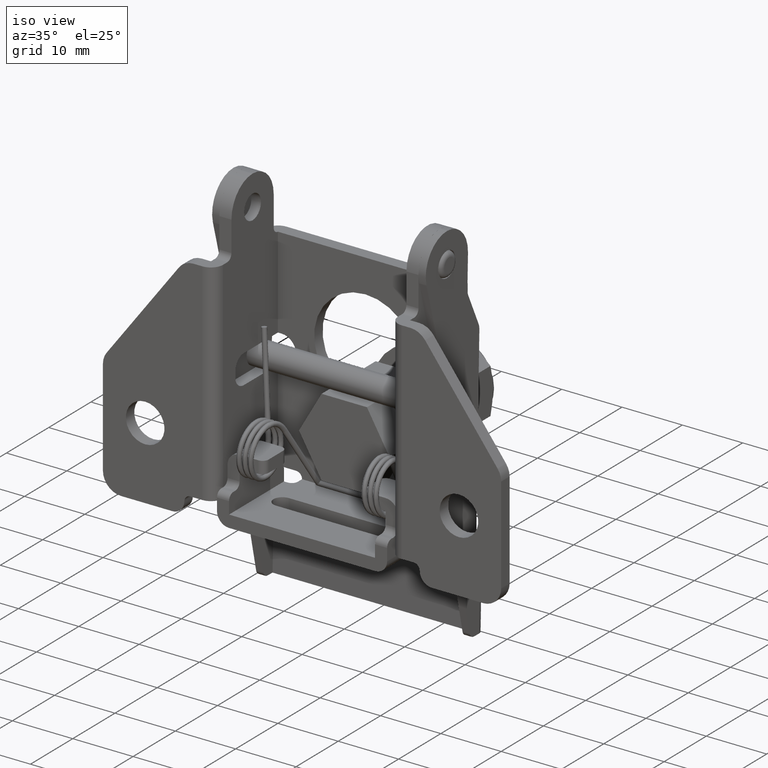
[diagram: clean part render]
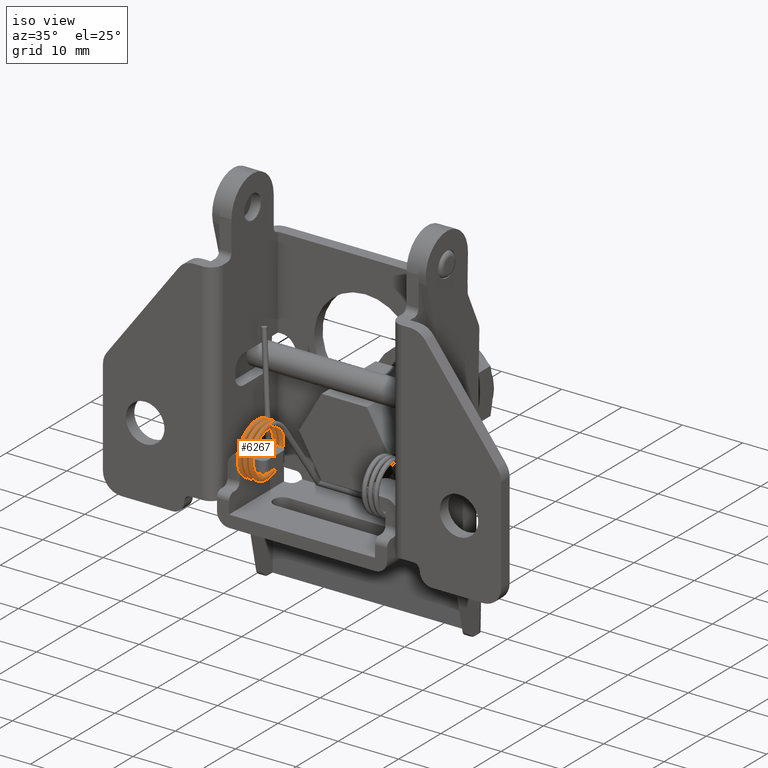
[diagram: same view with one face highlighted and labeled with its STEP entity id]
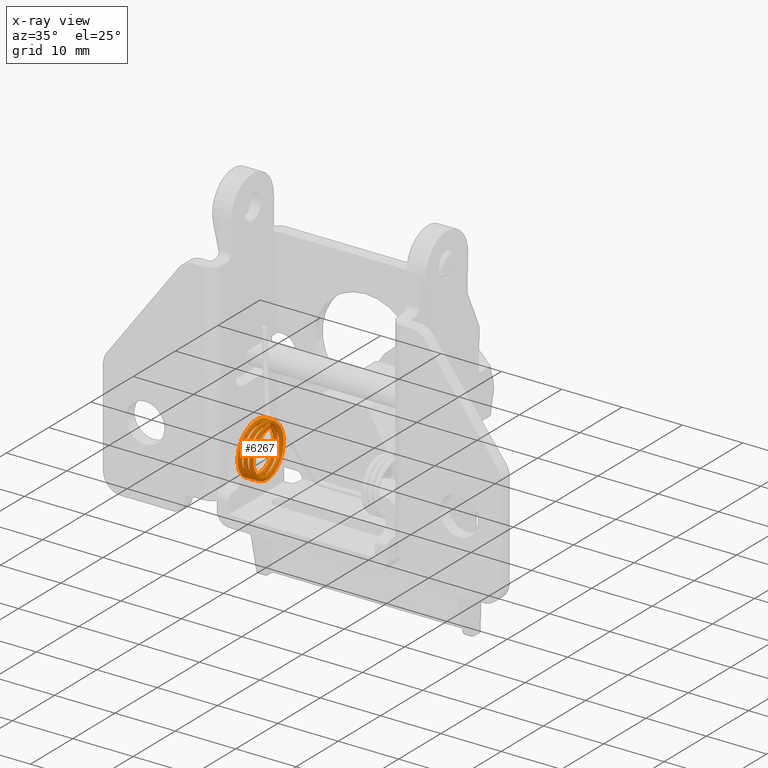
[diagram: x-ray of the same camera — body ghosted, the highlighted face saturated]
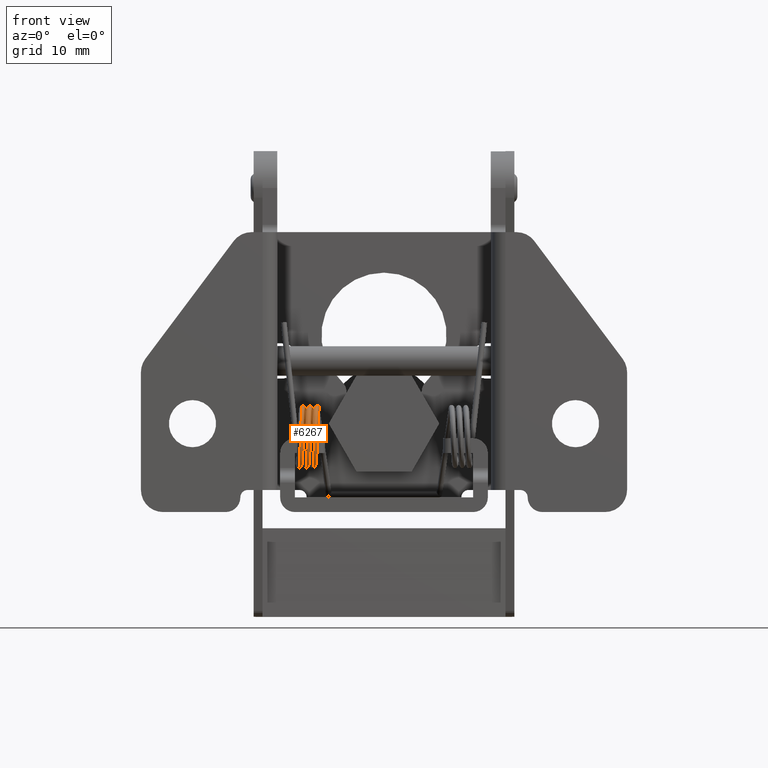
[diagram: same view with one face highlighted and labeled with its STEP entity id]
A machine part, iso view. The second image highlights one B-rep face of the part: STEP entity #6267.
The next image is the same camera in x-ray: the body ghosted, the highlighted face saturated — about 0% of this face is hidden behind the body in this view.
A second angle (front view) of the same face is appended — the face is thin or edge-on in the first view.
In plain terms, the highlighted face is a freeform B-spline surface patch.
Its self-contained STEP definition (entity closure, byte-faithful):
#9 = ORIENTED_EDGE ( 'NONE', *, *, #413, .F. ) ;
#28 = CARTESIAN_POINT ( 'NONE',  ( -10.13444173666892200, 5.200000000000001100, 2.527105745132014000 ) ) ;
#49 = ORIENTED_EDGE ( 'NONE', *, *, #6325, .F. ) ;
#63 = CARTESIAN_POINT ( 'NONE',  ( -10.91444173666892100, 9.500000000000005300, 0.008224063336321465700 ) ) ;
#96 = AXIS2_PLACEMENT_3D ( 'NONE', #4137, #9591, #4915 ) ;
#132 = CARTESIAN_POINT ( 'NONE',  ( -10.55444173666892000, 3.750252531694167100, -5.272894254867992500 ) ) ;
#169 = CARTESIAN_POINT ( 'NONE',  ( -11.33444173666892100, 1.699999999999998400, -1.772894254867989800 ) ) ;
#244 = CARTESIAN_POINT ( 'NONE',  ( -10.81444173666892400, 8.240559159102158300, 1.267664904234166600 ) ) ;
#286 = CARTESIAN_POINT ( 'NONE',  ( -11.59444173666892500, 9.500000000000005300, -3.554012573072304000 ) ) ;
#293 = CARTESIAN_POINT ( 'NONE',  ( -9.834441736668921400, 9.500000000000005300, -3.554012573072303100 ) ) ;
#330 = CARTESIAN_POINT ( 'NONE',  ( -12.37444173666892400, 5.199999999999999300, -6.072894254867994100 ) ) ;
#332 = CARTESIAN_POINT ( 'NONE',  ( -10.61444173666892100, 5.200000000000000200, -6.072894254867994100 ) ) ;
#356 = CARTESIAN_POINT ( 'NONE',  ( -9.894441736668920100, 9.500000000000005300, -1.772894254867990900 ) ) ;
#360 = CARTESIAN_POINT ( 'NONE',  ( -11.39444173666892000, 0.8999999999999965800, -3.554012573072300900 ) ) ;
#389 = CARTESIAN_POINT ( 'NONE',  ( -10.67444173666892100, 6.981118318204309500, -6.072894254867994900 ) ) ;
#394 = CARTESIAN_POINT ( 'NONE',  ( -8.914441736668919700, 6.981118318204311300, -6.072894254867995800 ) ) ;
#413 = EDGE_CURVE ( 'NONE', #5222, #7185, #1939, .T. ) ;
#426 = CARTESIAN_POINT ( 'NONE',  ( -11.45444173666891900, 2.159440840897842900, -4.813453413970147000 ) ) ;
#433 = CARTESIAN_POINT ( 'NONE',  ( -9.694441736668917300, 2.159440840897842500, -4.813453413970146100 ) ) ;
#464 = CARTESIAN_POINT ( 'NONE',  ( -10.01444173666892100, 7.674873734152919600, 0.7019794792849269900 ) ) ;
#467 = CARTESIAN_POINT ( 'NONE',  ( -10.47444173666892000, 0.8999999999999962500, 0.008224063336320815200 ) ) ;
#494 = CARTESIAN_POINT ( 'NONE',  ( -8.794441736668918700, 3.750252531694167100, -5.272894254867993300 ) ) ;
#534 = CARTESIAN_POINT ( 'NONE',  ( -9.574441736668918100, 1.699999999999998400, -1.772894254867990000 ) ) ;
#569 = CARTESIAN_POINT ( 'NONE',  ( -10.35444173666891900, 3.750252531694167500, 1.727105745132012400 ) ) ;
#598 = CARTESIAN_POINT ( 'NONE',  ( -9.474441736668920200, 1.699999999999998200, -3.222641723173823400 ) ) ;
#617 = CARTESIAN_POINT ( 'NONE',  ( -9.294441736668920500, 2.159440840897843400, 1.267664904234167400 ) ) ;
#630 = CARTESIAN_POINT ( 'NONE',  ( -10.25444173666892000, 2.725126265847083000, 0.7019794792849278800 ) ) ;
#653 = CARTESIAN_POINT ( 'NONE',  ( -9.474441736668920200, 0.8999999999999963600, -3.554012573072300500 ) ) ;
#668 = CARTESIAN_POINT ( 'NONE',  ( -11.03444173666892100, 6.649747468305837300, 1.727105745132011100 ) ) ;
#700 = CARTESIAN_POINT ( 'NONE',  ( -10.15444173666892300, 1.699999999999998400, -0.3231467865621562300 ) ) ;
#720 = CARTESIAN_POINT ( 'NONE',  ( -9.174441736668921300, 5.200000000000001100, 2.127105745132013200 ) ) ;
#728 = CARTESIAN_POINT ( 'NONE',  ( -10.93444173666892500, 5.200000000000000200, 1.727105745132012000 ) ) ;
#768 = CARTESIAN_POINT ( 'NONE',  ( -11.71444173666892600, 8.700000000000002800, -0.3231467865621555100 ) ) ;
#832 = CARTESIAN_POINT ( 'NONE',  ( -10.25444173666892000, 2.159440840897843400, 1.267664904234167400 ) ) ;
#856 = CARTESIAN_POINT ( 'NONE',  ( -11.03444173666892100, 6.981118318204313900, 2.527105745132013600 ) ) ;
#934 = CARTESIAN_POINT ( 'NONE',  ( -10.67444173666892100, 6.649747468305832000, -5.272894254867993300 ) ) ;
#964 = CARTESIAN_POINT ( 'NONE',  ( -11.45444173666891900, 2.725126265847082500, -4.247767989020908400 ) ) ;
#999 = CARTESIAN_POINT ( 'NONE',  ( -10.15444173666892300, 0.8999999999999962500, 0.008224063336320815200 ) ) ;
#1031 = CARTESIAN_POINT ( 'NONE',  ( -11.53263035136186000, 5.200000000000000200, -6.070703013015304400 ) ) ;
#1039 = CARTESIAN_POINT ( 'NONE',  ( -10.93444173666892500, 5.200000000000000200, 2.527105745132014500 ) ) ;
#1070 = CARTESIAN_POINT ( 'NONE',  ( -11.71444173666892600, 9.500000000000005300, 0.008224063336321465700 ) ) ;
#1073 = CARTESIAN_POINT ( 'NONE',  ( -9.954441736668918800, 9.500000000000005300, 0.008224063336321465700 ) ) ;
#1101 = CARTESIAN_POINT ( 'NONE',  ( -9.234441736668920000, 3.418881681795690000, 2.527105745132014500 ) ) ;
#1107 = CARTESIAN_POINT ( 'NONE',  ( -10.73444173666892200, 8.240559159102158300, -4.813453413970148800 ) ) ;
#1140 = CARTESIAN_POINT ( 'NONE',  ( -10.01444173666892100, 8.240559159102158300, 1.267664904234166600 ) ) ;
#1145 = CARTESIAN_POINT ( 'NONE',  ( -11.51444173666891900, 3.418881681795690000, -6.072894254867994900 ) ) ;
#1150 = CIRCLE ( 'NONE', #1722, 0.4000000000000010200 ) ;
#1180 = CARTESIAN_POINT ( 'NONE',  ( -10.79444173666892000, 9.500000000000005300, -3.554012573072303100 ) ) ;
#1184 = CARTESIAN_POINT ( 'NONE',  ( -9.034441736668917100, 9.500000000000005300, -3.554012573072304000 ) ) ;
#1210 = CARTESIAN_POINT ( 'NONE',  ( -11.57444173666892000, 5.200000000000000200, -6.072894254867994100 ) ) ;
#1211 = CARTESIAN_POINT ( 'NONE',  ( -9.354441736668921000, 1.699999999999998400, -0.3231467865621561700 ) ) ;
#1215 = CARTESIAN_POINT ( 'NONE',  ( -9.814441736668920100, 5.199999999999999300, -6.072894254867994100 ) ) ;
#1236 = CARTESIAN_POINT ( 'NONE',  ( -10.13444173666892200, 5.200000000000001100, 1.727105745132012200 ) ) ;
#1240 = CARTESIAN_POINT ( 'NONE',  ( -10.59444173666892300, 0.8999999999999962500, -3.554012573072300900 ) ) ;
#1284 = CARTESIAN_POINT ( 'NONE',  ( -8.914441736668919700, 6.649747468305833700, -5.272894254867993300 ) ) ;
#1319 = CARTESIAN_POINT ( 'NONE',  ( -9.694441736668917300, 2.725126265847082500, -4.247767989020907500 ) ) ;
#1349 = CARTESIAN_POINT ( 'NONE',  ( -10.47444173666892000, 1.699999999999998400, -0.3231467865621562300 ) ) ;
#1385 = CARTESIAN_POINT ( 'NONE',  ( -9.594441736668921200, 3.750252531694166600, -5.272894254867992500 ) ) ;
#1415 = CARTESIAN_POINT ( 'NONE',  ( -10.37444173666892100, 1.699999999999998400, -1.772894254867989800 ) ) ;
#1435 = CARTESIAN_POINT ( 'NONE',  ( -9.594441736668921200, 3.418881681795689500, -6.072894254867994900 ) ) ;
#1446 = CARTESIAN_POINT ( 'NONE',  ( -11.15444173666892300, 3.750252531694166600, 1.727105745132012600 ) ) ;
#1471 = CARTESIAN_POINT ( 'NONE',  ( -10.27444173666892600, 1.699999999999998400, -3.222641723173823800 ) ) ;
#1500 = DIRECTION ( 'NONE',  ( 0.0000000000000000000, 0.0000000000000000000, 1.000000000000000000 ) ) ;
#1507 = CARTESIAN_POINT ( 'NONE',  ( -11.05444173666892200, 2.725126265847083000, 0.7019794792849278800 ) ) ;
#1543 = CARTESIAN_POINT ( 'NONE',  ( -11.83444173666892700, 6.649747468305836400, 1.727105745132011800 ) ) ;
#1592 = CARTESIAN_POINT ( 'NONE',  ( -10.37444173666892100, 0.8999999999999962500, -1.772894254867989800 ) ) ;
#1628 = CARTESIAN_POINT ( 'NONE',  ( -11.15444173666892500, 3.418881681795689500, 2.527105745132014000 ) ) ;
#1631 = FACE_OUTER_BOUND ( 'NONE', #8585, .T. ) ;
#1700 = CARTESIAN_POINT ( 'NONE',  ( -10.79444173666892000, 8.700000000000002800, -3.222641723173825600 ) ) ;
#1722 = AXIS2_PLACEMENT_3D ( 'NONE', #7628, #2977, #8403 ) ;
#1733 = CARTESIAN_POINT ( 'NONE',  ( -11.57444173666892000, 5.200000000000001100, -5.272894254867992500 ) ) ;
#1778 = CARTESIAN_POINT ( 'NONE',  ( -10.27444173666892600, 0.8999999999999962500, -3.554012573072300900 ) ) ;
#1803 = CARTESIAN_POINT ( 'NONE',  ( -11.05444173666892200, 2.159440840897843400, 1.267664904234167400 ) ) ;
#1808 = CARTESIAN_POINT ( 'NONE',  ( -9.294441736668920500, 2.159440840897843400, 1.267664904234167400 ) ) ;
#1838 = CARTESIAN_POINT ( 'NONE',  ( -11.83444173666892700, 6.981118318204313900, 2.527105745132013100 ) ) ;
#1845 = CARTESIAN_POINT ( 'NONE',  ( -10.07444173666892000, 6.981118318204313900, 2.527105745132013600 ) ) ;
#1878 = CARTESIAN_POINT ( 'NONE',  ( -9.354441736668919200, 0.8999999999999965800, 0.008224063336320815200 ) ) ;
#1885 = CARTESIAN_POINT ( 'NONE',  ( -10.85444173666891900, 9.500000000000005300, -1.772894254867990900 ) ) ;
#1910 = CARTESIAN_POINT ( 'NONE',  ( -10.13444173666892200, 5.200000000000001100, 2.527105745132014000 ) ) ;
#1913 = CARTESIAN_POINT ( 'NONE',  ( -8.374441736668918800, 5.200000000000000200, 2.527105745132014500 ) ) ;
#1939 = CIRCLE ( 'NONE', #9321, 0.4000000000000010200 ) ;
#1942 = CARTESIAN_POINT ( 'NONE',  ( -10.91444173666892100, 9.500000000000005300, 0.008224063336321465700 ) ) ;
#1946 = CARTESIAN_POINT ( 'NONE',  ( -9.154441736668916400, 9.500000000000005300, 0.008224063336321465700 ) ) ;
#1977 = CARTESIAN_POINT ( 'NONE',  ( -9.474441736668920200, 1.699999999999998400, -3.222641723173823800 ) ) ;
#1981 = CARTESIAN_POINT ( 'NONE',  ( -9.934441736668919300, 8.240559159102158300, -4.813453413970148800 ) ) ;
#2018 = CARTESIAN_POINT ( 'NONE',  ( -10.25444173666892000, 2.725126265847083000, 0.7019794792849278800 ) ) ;
#2020 = CARTESIAN_POINT ( 'NONE',  ( -10.71444173666891900, 3.418881681795690000, -6.072894254867994100 ) ) ;
#2046 = CARTESIAN_POINT ( 'NONE',  ( -9.034441736668917100, 8.700000000000002800, -3.222641723173825600 ) ) ;
#2079 = CARTESIAN_POINT ( 'NONE',  ( -9.814441736668920100, 5.200000000000000200, -5.272894254867992500 ) ) ;
#2117 = CARTESIAN_POINT ( 'NONE',  ( -10.59444173666892300, 1.699999999999998400, -3.222641723173823800 ) ) ;
#2127 = CARTESIAN_POINT ( 'NONE',  ( -9.174441736668921300, 5.200000000000001100, 2.527105745132014000 ) ) ;
#2149 = CARTESIAN_POINT ( 'NONE',  ( -9.714441736668924000, 6.649747468305833700, -5.272894254867993300 ) ) ;
#2178 = CARTESIAN_POINT ( 'NONE',  ( -10.49444173666892000, 2.725126265847082500, -4.247767989020908400 ) ) ;
#2203 = CARTESIAN_POINT ( 'NONE',  ( -9.714441736668924000, 6.981118318204309500, -6.072894254867994900 ) ) ;
#2216 = CARTESIAN_POINT ( 'NONE',  ( -11.27444173666891900, 1.699999999999998200, -0.3231467865621561700 ) ) ;
#2250 = CARTESIAN_POINT ( 'NONE',  ( -10.39444173666892400, 3.750252531694167100, -5.272894254867993300 ) ) ;
#2289 = CARTESIAN_POINT ( 'NONE',  ( -11.17444173666892300, 1.699999999999998400, -1.772894254867990000 ) ) ;
#2320 = CARTESIAN_POINT ( 'NONE',  ( -11.95444173666892400, 3.750252531694167500, 1.727105745132012400 ) ) ;
#2386 = CARTESIAN_POINT ( 'NONE',  ( -10.49444173666892000, 2.159440840897842900, -4.813453413970147000 ) ) ;
#2417 = CARTESIAN_POINT ( 'NONE',  ( -11.27444173666891900, 0.8999999999999963600, 0.008224063336320815200 ) ) ;
#2488 = CARTESIAN_POINT ( 'NONE',  ( -10.91444173666892100, 8.700000000000002800, -0.3231467865621556200 ) ) ;
#2552 = CARTESIAN_POINT ( 'NONE',  ( -10.39444173666892400, 3.418881681795690000, -6.072894254867994100 ) ) ;
#2595 = CARTESIAN_POINT ( 'NONE',  ( -11.17444173666892300, 0.8999999999999962500, -1.772894254867990000 ) ) ;
#2600 = CARTESIAN_POINT ( 'NONE',  ( -9.414441736668921500, 0.8999999999999962500, -1.772894254867989800 ) ) ;
#2634 = CARTESIAN_POINT ( 'NONE',  ( -11.95444173666892400, 3.418881681795690000, 2.527105745132014500 ) ) ;
#2638 = CARTESIAN_POINT ( 'NONE',  ( -10.19444173666891900, 3.418881681795690000, 2.527105745132014500 ) ) ;
#2663 = CARTESIAN_POINT ( 'NONE',  ( -9.474441736668920200, 0.8999999999999965800, -3.554012573072300900 ) ) ;
#2668 = CARTESIAN_POINT ( 'NONE',  ( -10.97444173666892000, 8.240559159102158300, 1.267664904234166600 ) ) ;
#2697 = CARTESIAN_POINT ( 'NONE',  ( -10.25444173666892000, 2.159440840897843400, 1.267664904234167400 ) ) ;
#2698 = CARTESIAN_POINT ( 'NONE',  ( -9.234441736668920000, 3.750252531694167100, 1.727105745132012400 ) ) ;
#2702 = CARTESIAN_POINT ( 'NONE',  ( -8.494441736668918000, 2.159440840897843400, 1.267664904234167400 ) ) ;
#2737 = CARTESIAN_POINT ( 'NONE',  ( -11.03444173666892100, 6.981118318204313900, 2.527105745132013600 ) ) ;
#2743 = CARTESIAN_POINT ( 'NONE',  ( -9.274441736668917400, 6.981118318204313900, 2.527105745132013100 ) ) ;
#2764 = CARTESIAN_POINT ( 'NONE',  ( -11.57444173666892000, 5.199999999999999300, -6.072894254867994100 ) ) ;
#2770 = CARTESIAN_POINT ( 'NONE',  ( -9.594441736668921200, 3.750252531694167100, -5.272894254867992500 ) ) ;
#2772 = CARTESIAN_POINT ( 'NONE',  ( -10.05444173666891800, 9.500000000000005300, -1.772894254867991300 ) ) ;
#2799 = CARTESIAN_POINT ( 'NONE',  ( -8.374441736668918800, 5.200000000000000200, 1.727105745132012000 ) ) ;
#2818 = EDGE_CURVE ( 'NONE', #4300, #6650, #7097, .T. ) ;
#2839 = CARTESIAN_POINT ( 'NONE',  ( -9.154441736668916400, 8.700000000000002800, -0.3231467865621555100 ) ) ;
#2877 = CARTESIAN_POINT ( 'NONE',  ( -9.934441736668919300, 7.674873734152917800, -4.247767989020907500 ) ) ;
#2908 = CARTESIAN_POINT ( 'NONE',  ( -10.71444173666891900, 3.750252531694167100, -5.272894254867993300 ) ) ;
#2941 = CARTESIAN_POINT ( 'NONE',  ( -9.834441736668921400, 8.700000000000002800, -3.222641723173825600 ) ) ;
#2974 = CARTESIAN_POINT ( 'NONE',  ( -10.61444173666892100, 5.200000000000001100, -5.272894254867992500 ) ) ;
#2977 = DIRECTION ( 'NONE',  ( 0.0000000000000000000, 1.000000000000000000, 0.0000000000000000000 ) ) ;
#3000 = CARTESIAN_POINT ( 'NONE',  ( -9.834441736668919600, 9.500000000000005300, -3.554012573072303100 ) ) ;
#3013 = CARTESIAN_POINT ( 'NONE',  ( -11.39444173666892000, 1.699999999999998200, -3.222641723173823400 ) ) ;
#3039 = CARTESIAN_POINT ( 'NONE',  ( -10.51444173666892500, 6.649747468305833700, -5.272894254867993300 ) ) ;
#3072 = CARTESIAN_POINT ( 'NONE',  ( -11.29444173666892200, 2.725126265847082500, -4.247767989020907500 ) ) ;
#3104 = CARTESIAN_POINT ( 'NONE',  ( -12.07444173666892300, 1.699999999999998400, -0.3231467865621562300 ) ) ;
#3115 = CARTESIAN_POINT ( 'NONE',  ( -10.37444173666892100, 1.699999999999998400, -1.772894254867989800 ) ) ;
#3137 = CARTESIAN_POINT ( 'NONE',  ( -11.57444173666892000, 5.200000000000000200, -5.672894254867993700 ) ) ;
#3159 = CARTESIAN_POINT ( 'NONE',  ( -10.61444173666892100, 5.200000000000000200, -6.072894254867994100 ) ) ;
#3196 = CARTESIAN_POINT ( 'NONE',  ( -11.39444173666892000, 0.8999999999999963600, -3.554012573072300500 ) ) ;
#3266 = CARTESIAN_POINT ( 'NONE',  ( -11.03444173666892100, 6.649747468305837300, 1.727105745132011300 ) ) ;
#3340 = CARTESIAN_POINT ( 'NONE',  ( -10.51444173666892500, 6.981118318204311300, -6.072894254867995800 ) ) ;
#3373 = CARTESIAN_POINT ( 'NONE',  ( -11.29444173666892200, 2.159440840897842500, -4.813453413970146100 ) ) ;
#3377 = CARTESIAN_POINT ( 'NONE',  ( -9.534441736668918900, 2.159440840897842900, -4.813453413970147000 ) ) ;
#3400 = CARTESIAN_POINT ( 'NONE',  ( -12.07444173666892300, 0.8999999999999962500, 0.008224063336320815200 ) ) ;
#3408 = CARTESIAN_POINT ( 'NONE',  ( -10.31444173666892000, 0.8999999999999965800, 0.008224063336320815200 ) ) ;
#3443 = CARTESIAN_POINT ( 'NONE',  ( -9.594441736668921200, 3.418881681795690000, -6.072894254867994900 ) ) ;
#3448 = CARTESIAN_POINT ( 'NONE',  ( -11.09444173666892100, 5.200000000000001100, 2.527105745132014000 ) ) ;
#3477 = CARTESIAN_POINT ( 'NONE',  ( -10.37444173666892100, 0.8999999999999962500, -1.772894254867989800 ) ) ;
#3481 = CARTESIAN_POINT ( 'NONE',  ( -8.614441736668919000, 0.8999999999999962500, -1.772894254867990000 ) ) ;
#3510 = CARTESIAN_POINT ( 'NONE',  ( -11.15444173666892300, 3.418881681795690000, 2.527105745132014500 ) ) ;
#3514 = CARTESIAN_POINT ( 'NONE',  ( -9.394441736668918400, 3.418881681795690000, 2.527105745132014500 ) ) ;
#3545 = CARTESIAN_POINT ( 'NONE',  ( -9.714441736668924000, 6.649747468305832000, -5.272894254867993300 ) ) ;
#3551 = CARTESIAN_POINT ( 'NONE',  ( -10.17444173666891800, 8.240559159102158300, 1.267664904234166600 ) ) ;
#3591 = CARTESIAN_POINT ( 'NONE',  ( -8.494441736668918000, 2.725126265847083000, 0.7019794792849278800 ) ) ;
#3623 = CARTESIAN_POINT ( 'NONE',  ( -9.274441736668917400, 6.649747468305836400, 1.727105745132011800 ) ) ;
#3654 = CARTESIAN_POINT ( 'NONE',  ( -10.05444173666891800, 8.700000000000002800, -1.772894254867990900 ) ) ;
#3692 = CARTESIAN_POINT ( 'NONE',  ( -9.174441736668921300, 5.200000000000001100, 1.727105745132012200 ) ) ;
#3728 = CARTESIAN_POINT ( 'NONE',  ( -9.954441736668918800, 8.700000000000002800, -0.3231467865621555100 ) ) ;
#3743 = CARTESIAN_POINT ( 'NONE',  ( -11.57444173666892000, 5.200000000000001100, -5.272894254867992500 ) ) ;
#3756 = CARTESIAN_POINT ( 'NONE',  ( -10.73444173666892200, 7.674873734152917800, -4.247767989020908400 ) ) ;
#3789 = CARTESIAN_POINT ( 'NONE',  ( -11.51444173666891900, 3.750252531694166600, -5.272894254867992500 ) ) ;
#3826 = CARTESIAN_POINT ( 'NONE',  ( -10.63444173666892200, 8.700000000000002800, -3.222641723173825600 ) ) ;
#3862 = CARTESIAN_POINT ( 'NONE',  ( -11.41444173666892300, 5.200000000000000200, -5.272894254867992500 ) ) ;
#3893 = CARTESIAN_POINT ( 'NONE',  ( -12.19444173666892300, 1.699999999999998400, -3.222641723173823800 ) ) ;
#3912 = CARTESIAN_POINT ( 'NONE',  ( -9.954441736668920600, 9.500000000000005300, 0.008224063336321465700 ) ) ;
#3922 = DIRECTION ( 'NONE',  ( 0.0000000000000000000, 2.168404344971003300E-015, 1.000000000000000000 ) ) ;
#3943 = EDGE_CURVE ( 'NONE', #7391, #4300, #5486, .T. ) ;
#3948 = CARTESIAN_POINT ( 'NONE',  ( -10.73444173666892200, 8.240559159102158300, -4.813453413970148800 ) ) ;
#3984 = CARTESIAN_POINT ( 'NONE',  ( -11.51444173666892100, 3.418881681795689500, -6.072894254867994900 ) ) ;
#4047 = CARTESIAN_POINT ( 'NONE',  ( -11.15444173666892500, 3.750252531694167100, 1.727105745132012400 ) ) ;
#4127 = CARTESIAN_POINT ( 'NONE',  ( -10.63444173666892200, 9.500000000000005300, -3.554012573072304000 ) ) ;
#4137 = CARTESIAN_POINT ( 'NONE',  ( -11.57444173666892000, 5.200000000000000200, -5.672894254867993700 ) ) ;
#4162 = CARTESIAN_POINT ( 'NONE',  ( -11.41444173666892300, 5.199999999999999300, -6.072894254867994100 ) ) ;
#4166 = CARTESIAN_POINT ( 'NONE',  ( -9.654441736668919900, 5.200000000000000200, -6.072894254867994100 ) ) ;
#4200 = CARTESIAN_POINT ( 'NONE',  ( -12.19444173666892300, 0.8999999999999962500, -3.554012573072300900 ) ) ;
#4207 = CARTESIAN_POINT ( 'NONE',  ( -10.43444173666892500, 0.8999999999999965800, -3.554012573072300900 ) ) ;
#4235 = CARTESIAN_POINT ( 'NONE',  ( -9.714441736668924000, 6.981118318204309500, -6.072894254867994900 ) ) ;
#4238 = CARTESIAN_POINT ( 'NONE',  ( -11.21444173666892000, 2.159440840897843400, 1.267664904234167400 ) ) ;
#4263 = CARTESIAN_POINT ( 'NONE',  ( -10.49444173666892000, 2.159440840897842900, -4.813453413970147000 ) ) ;
#4271 = CARTESIAN_POINT ( 'NONE',  ( -8.734441736668916400, 2.159440840897842500, -4.813453413970146100 ) ) ;
#4300 = VERTEX_POINT ( 'NONE', #3743 ) ;
#4301 = EDGE_CURVE ( 'NONE', #5222, #6810, #6519, .T. ) ;
#4308 = CARTESIAN_POINT ( 'NONE',  ( -11.27444173666891900, 0.8999999999999965800, 0.008224063336320815200 ) ) ;
#4311 = CARTESIAN_POINT ( 'NONE',  ( -9.514441736668919300, 0.8999999999999962500, 0.008224063336320815200 ) ) ;
#4346 = CARTESIAN_POINT ( 'NONE',  ( -9.834441736668919600, 8.700000000000002800, -3.222641723173825600 ) ) ;
#4348 = CARTESIAN_POINT ( 'NONE',  ( -10.29444173666891900, 5.200000000000000200, 2.527105745132014500 ) ) ;
#4378 = CARTESIAN_POINT ( 'NONE',  ( -8.614441736668919000, 1.699999999999998400, -1.772894254867990000 ) ) ;
#4408 = CARTESIAN_POINT ( 'NONE',  ( -9.394441736668918400, 3.750252531694167500, 1.727105745132012400 ) ) ;
#4451 = CARTESIAN_POINT ( 'NONE',  ( -10.17444173666891800, 7.674873734152919600, 0.7019794792849269900 ) ) ;
#4488 = CARTESIAN_POINT ( 'NONE',  ( -9.294441736668920500, 2.725126265847083000, 0.7019794792849278800 ) ) ;
#4518 = CARTESIAN_POINT ( 'NONE',  ( -10.07444173666892000, 6.649747468305837300, 1.727105745132011100 ) ) ;
#4535 = CARTESIAN_POINT ( 'NONE',  ( -9.174441736668921300, 5.200000000000001100, 2.527105745132014000 ) ) ;
#4547 = CARTESIAN_POINT ( 'NONE',  ( -10.85444173666891900, 8.700000000000002800, -1.772894254867990700 ) ) ;
#4581 = CARTESIAN_POINT ( 'NONE',  ( -9.974441736668922000, 5.200000000000000200, 1.727105745132012000 ) ) ;
#4615 = CARTESIAN_POINT ( 'NONE',  ( -10.75444173666892300, 8.700000000000002800, -0.3231467865621555100 ) ) ;
#4644 = CARTESIAN_POINT ( 'NONE',  ( -11.53444173666892400, 7.674873734152917800, -4.247767989020907500 ) ) ;
#4656 = CIRCLE ( 'NONE', #8181, 0.4000000000000010200 ) ;
#4677 = CARTESIAN_POINT ( 'NONE',  ( -12.31444173666892500, 3.750252531694167100, -5.272894254867993300 ) ) ;
#4702 = CARTESIAN_POINT ( 'NONE',  ( -10.07444173666892000, 6.981118318204313900, 2.527105745132013600 ) ) ;
#4727 = CARTESIAN_POINT ( 'NONE',  ( -10.85444173666891900, 9.500000000000005300, -1.772894254867990900 ) ) ;
#4794 = CARTESIAN_POINT ( 'NONE',  ( -10.49444173666892000, 2.725126265847082500, -4.247767989020908400 ) ) ;
#4831 = CARTESIAN_POINT ( 'NONE',  ( -11.27444173666891900, 1.699999999999998400, -0.3231467865621561700 ) ) ;
#4903 = CARTESIAN_POINT ( 'NONE',  ( -10.75444173666892300, 9.500000000000005300, 0.008224063336321465700 ) ) ;
#4915 = DIRECTION ( 'NONE',  ( 0.0000000000000000000, 2.168404344971003300E-015, 1.000000000000000000 ) ) ;
#4940 = CARTESIAN_POINT ( 'NONE',  ( -11.53444173666892400, 8.240559159102158300, -4.813453413970148800 ) ) ;
#4944 = CARTESIAN_POINT ( 'NONE',  ( -9.774441736668920900, 8.240559159102158300, -4.813453413970148800 ) ) ;
#4971 = CARTESIAN_POINT ( 'NONE',  ( -12.31444173666892500, 3.418881681795690000, -6.072894254867994100 ) ) ;
#4978 = CARTESIAN_POINT ( 'NONE',  ( -10.55444173666892000, 3.418881681795690000, -6.072894254867994900 ) ) ;
#5013 = CARTESIAN_POINT ( 'NONE',  ( -9.834441736668921400, 9.500000000000005300, -3.554012573072303100 ) ) ;
#5016 = CARTESIAN_POINT ( 'NONE',  ( -11.33444173666892100, 0.8999999999999962500, -1.772894254867989800 ) ) ;
#5027 = ORIENTED_EDGE ( 'NONE', *, *, #3943, .F. ) ;
#5049 = CARTESIAN_POINT ( 'NONE',  ( -10.61444173666892100, 5.200000000000000200, -6.072894254867994100 ) ) ;
#5054 = CARTESIAN_POINT ( 'NONE',  ( -8.854441736668917400, 5.199999999999999300, -6.072894254867994100 ) ) ;
#5084 = CARTESIAN_POINT ( 'NONE',  ( -11.39444173666892000, 0.8999999999999965800, -3.554012573072300900 ) ) ;
#5087 = CARTESIAN_POINT ( 'NONE',  ( -9.634441736668920300, 0.8999999999999962500, -3.554012573072300900 ) ) ;
#5117 = CARTESIAN_POINT ( 'NONE',  ( -9.954441736668920600, 8.700000000000002800, -0.3231467865621556200 ) ) ;
#5123 = CARTESIAN_POINT ( 'NONE',  ( -10.41444173666891800, 2.159440840897843400, 1.267664904234167400 ) ) ;
#5158 = CARTESIAN_POINT ( 'NONE',  ( -8.734441736668916400, 2.725126265847082500, -4.247767989020907500 ) ) ;
#5193 = CARTESIAN_POINT ( 'NONE',  ( -9.514441736668919300, 1.699999999999998400, -0.3231467865621562300 ) ) ;
#5222 = VERTEX_POINT ( 'NONE', #2127 ) ;
#5225 = CARTESIAN_POINT ( 'NONE',  ( -10.29444173666891900, 5.200000000000000200, 1.727105745132012000 ) ) ;
#5254 = CARTESIAN_POINT ( 'NONE',  ( -9.414441736668921500, 1.699999999999998400, -1.772894254867989800 ) ) ;
#5292 = CARTESIAN_POINT ( 'NONE',  ( -10.19444173666891900, 3.750252531694166600, 1.727105745132012600 ) ) ;
#5313 = CARTESIAN_POINT ( 'NONE',  ( -9.414441736668921500, 0.8999999999999962500, -1.772894254867989800 ) ) ;
#5325 = CARTESIAN_POINT ( 'NONE',  ( -10.97444173666892000, 7.674873734152919600, 0.7019794792849269900 ) ) ;
#5359 = CARTESIAN_POINT ( 'NONE',  ( -10.09444173666892300, 2.725126265847083000, 0.7019794792849278800 ) ) ;
#5389 = CARTESIAN_POINT ( 'NONE',  ( -10.87444173666892400, 6.649747468305836400, 1.727105745132011800 ) ) ;
#5431 = CARTESIAN_POINT ( 'NONE',  ( -11.65444173666892200, 8.700000000000002800, -1.772894254867990900 ) ) ;
#5467 = CARTESIAN_POINT ( 'NONE',  ( -9.974441736668922000, 5.200000000000000200, 2.527105745132014500 ) ) ;
#5486 =( BOUNDED_CURVE ( )  B_SPLINE_CURVE ( 2, ( #5856, #2698, #8959, #1211, #6630, #1977, #7416, #2770, #8200, #3545, #8996, #4346, #9791, #5117, #464, #5890, #1236, #6657, #2018, #7451, #3115, #9472, #4794, #132, #5590, #934, #6355, #1700, #7137, #2488, #7908, #3266, #8712, #4047, #9503, #4831, #169, #5621, #964, #6389, #1733 ),
 .UNSPECIFIED., .F., .F. ) 
 B_SPLINE_CURVE_WITH_KNOTS ( ( 3, 2, 2, 2, 2, 2, 2, 2, 2, 2, 2, 2, 2, 2, 2, 2, 2, 2, 2, 2, 3 ),
 ( 0.0000000000000000000, 0.04166666666666666400, 0.08333333333333332900, 0.1250000000000000000, 0.1666666666666666600, 0.2083333333333333400, 0.2500000000000000000, 0.2916666666666666900, 0.3333333333333333100, 0.3750000000000000000, 0.4166666666666666900, 0.4583333333333332600, 0.5000000000000000000, 0.5416666666666666300, 0.5833333333333333700, 0.6250000000000000000, 0.6666666666666666300, 0.7083333333333333700, 0.7500000000000000000, 0.7916666666666666300, 0.8333333333333333700 ),
 .UNSPECIFIED. ) 
 CURVE ( )  GEOMETRIC_REPRESENTATION_ITEM ( )  RATIONAL_B_SPLINE_CURVE ( ( 1.000000000000000000, 0.9238795325112867400, 1.000000000000000000, 0.9238795325112867400, 1.000000000000000000, 0.9238795325112867400, 1.000000000000000000, 0.9238795325112867400, 1.000000000000000000, 0.9238795325112867400, 1.000000000000000000, 0.9238795325112867400, 1.000000000000000000, 0.9238795325112867400, 1.000000000000000000, 0.9238795325112867400, 1.000000000000000000, 0.9238795325112867400, 1.000000000000000000, 0.9238795325112867400, 1.000000000000000000, 0.9238795325112867400, 1.000000000000000000, 0.9238795325112867400, 1.000000000000000000, 0.9238795325112867400, 1.000000000000000000, 0.9238795325112867400, 1.000000000000000000, 0.9238795325112867400, 1.000000000000000000, 0.9238795325112867400, 1.000000000000000000, 0.9238795325112867400, 1.000000000000000000, 0.9238795325112867400, 1.000000000000000000, 0.9238795325112867400, 1.000000000000000000, 0.9238795325112867400, 1.000000000000000000 ) ) 
 REPRESENTATION_ITEM ( '' )  );
#5490 = CARTESIAN_POINT ( 'NONE',  ( -10.19444173666892100, 3.418881681795689500, 2.527105745132014000 ) ) ;
#5523 = CARTESIAN_POINT ( 'NONE',  ( -10.97444173666892000, 8.240559159102158300, 1.267664904234166600 ) ) ;
#5590 = CARTESIAN_POINT ( 'NONE',  ( -10.61444173666892100, 5.200000000000001100, -5.272894254867992500 ) ) ;
#5591 = CARTESIAN_POINT ( 'NONE',  ( -9.174441736668921300, 5.200000000000001100, 1.727105745132012000 ) ) ;
#5621 = CARTESIAN_POINT ( 'NONE',  ( -11.39444173666892000, 1.699999999999998400, -3.222641723173823800 ) ) ;
#5664 = CARTESIAN_POINT ( 'NONE',  ( -10.09444173666892300, 2.159440840897843400, 1.267664904234167400 ) ) ;
#5690 = CARTESIAN_POINT ( 'NONE',  ( -10.87444173666892400, 6.981118318204313900, 2.527105745132013100 ) ) ;
#5723 = CARTESIAN_POINT ( 'NONE',  ( -11.65444173666892200, 9.500000000000005300, -1.772894254867991300 ) ) ;
#5730 = CARTESIAN_POINT ( 'NONE',  ( -9.894441736668920100, 9.500000000000005300, -1.772894254867990900 ) ) ;
#5761 = CARTESIAN_POINT ( 'NONE',  ( -9.174441736668921300, 5.200000000000001100, 2.527105745132014000 ) ) ;
#5763 = CARTESIAN_POINT ( 'NONE',  ( -10.67444173666892100, 6.981118318204309500, -6.072894254867994900 ) ) ;
#5794 = CARTESIAN_POINT ( 'NONE',  ( -9.954441736668918800, 9.500000000000005300, 0.008224063336321465700 ) ) ;
#5797 = CARTESIAN_POINT ( 'NONE',  ( -11.45444173666891900, 2.159440840897842900, -4.813453413970147000 ) ) ;
#5822 = CARTESIAN_POINT ( 'NONE',  ( -10.73444173666892200, 8.240559159102158300, -4.813453413970148800 ) ) ;
#5829 = CARTESIAN_POINT ( 'NONE',  ( -8.974441736668918400, 8.240559159102158300, -4.813453413970148800 ) ) ;
#5855 = CARTESIAN_POINT ( 'NONE',  ( -11.51444173666891900, 3.418881681795690000, -6.072894254867994900 ) ) ;
#5856 = CARTESIAN_POINT ( 'NONE',  ( -9.174441736668921300, 5.200000000000001100, 1.727105745132012000 ) ) ;
#5858 = CARTESIAN_POINT ( 'NONE',  ( -9.754441736668919600, 3.418881681795690000, -6.072894254867994100 ) ) ;
#5890 = CARTESIAN_POINT ( 'NONE',  ( -10.07444173666892000, 6.649747468305837300, 1.727105745132011300 ) ) ;
#5895 = CARTESIAN_POINT ( 'NONE',  ( -10.53444173666892100, 0.8999999999999962500, -1.772894254867990000 ) ) ;
#5928 = CARTESIAN_POINT ( 'NONE',  ( -8.854441736668917400, 5.200000000000000200, -5.272894254867992500 ) ) ;
#5957 = CARTESIAN_POINT ( 'NONE',  ( -9.634441736668920300, 1.699999999999998400, -3.222641723173823800 ) ) ;
#5972 = ORIENTED_EDGE ( 'NONE', *, *, #8662, .F. ) ;
#5994 = CARTESIAN_POINT ( 'NONE',  ( -10.41444173666891800, 2.725126265847083000, 0.7019794792849278800 ) ) ;
#6029 = CARTESIAN_POINT ( 'NONE',  ( -9.534441736668918900, 2.725126265847082500, -4.247767989020908400 ) ) ;
#6058 = CARTESIAN_POINT ( 'NONE',  ( -10.31444173666892000, 1.699999999999998200, -0.3231467865621561700 ) ) ;
#6076 = CARTESIAN_POINT ( 'NONE',  ( -9.534441736668918900, 2.159440840897842900, -4.813453413970147000 ) ) ;
#6087 = CARTESIAN_POINT ( 'NONE',  ( -11.09444173666892100, 5.200000000000001100, 1.727105745132012200 ) ) ;
#6128 = CARTESIAN_POINT ( 'NONE',  ( -10.21444173666892400, 1.699999999999998400, -1.772894254867990000 ) ) ;
#6158 = DIRECTION ( 'NONE',  ( 0.0000000000000000000, 1.000000000000000000, 0.0000000000000000000 ) ) ;
#6168 = CARTESIAN_POINT ( 'NONE',  ( -10.99444173666892200, 3.750252531694167500, 1.727105745132012400 ) ) ;
#6197 = CARTESIAN_POINT ( 'NONE',  ( -11.77444173666892300, 7.674873734152919600, 0.7019794792849269900 ) ) ;
#6260 = CARTESIAN_POINT ( 'NONE',  ( -10.31444173666892000, 0.8999999999999963600, 0.008224063336320815200 ) ) ;
#6267 = ADVANCED_FACE ( 'NONE', ( #1631 ), #9405, .F. ) ;
#6290 = CARTESIAN_POINT ( 'NONE',  ( -11.09444173666892100, 5.200000000000001100, 2.527105745132014000 ) ) ;
#6325 = EDGE_CURVE ( 'NONE', #7185, #7391, #1150, .T. ) ;
#6355 = CARTESIAN_POINT ( 'NONE',  ( -10.73444173666892200, 7.674873734152917800, -4.247767989020908400 ) ) ;
#6389 = CARTESIAN_POINT ( 'NONE',  ( -11.51444173666892100, 3.750252531694167100, -5.272894254867992500 ) ) ;
#6425 = CARTESIAN_POINT ( 'NONE',  ( -10.21444173666892400, 0.8999999999999962500, -1.772894254867990000 ) ) ;
#6450 = CARTESIAN_POINT ( 'NONE',  ( -10.99444173666892200, 3.418881681795690000, 2.527105745132014500 ) ) ;
#6455 = CARTESIAN_POINT ( 'NONE',  ( -9.234441736668920000, 3.418881681795690000, 2.527105745132014500 ) ) ;
#6493 = CARTESIAN_POINT ( 'NONE',  ( -11.77444173666892300, 8.240559159102158300, 1.267664904234166600 ) ) ;
#6500 = CARTESIAN_POINT ( 'NONE',  ( -10.01444173666892100, 8.240559159102158300, 1.267664904234166600 ) ) ;
#6519 =( BOUNDED_CURVE ( )  B_SPLINE_CURVE ( 2, ( #4535, #9192, #617, #9973, #5313, #653, #6076, #1435, #6848, #2203, #7643, #3000, #8424, #3912, #9361, #4702, #28, #5490, #832, #6260, #1592, #7026, #2386, #7815, #3159, #8605, #3948, #9393, #4727, #63, #5523, #856, #6290, #1628, #7055, #2417, #7848, #3196, #8631, #3984, #9429 ),
 .UNSPECIFIED., .F., .F. ) 
 B_SPLINE_CURVE_WITH_KNOTS ( ( 3, 2, 2, 2, 2, 2, 2, 2, 2, 2, 2, 2, 2, 2, 2, 2, 2, 2, 2, 2, 3 ),
 ( 0.0000000000000000000, 0.04166666666666666400, 0.08333333333333332900, 0.1250000000000000000, 0.1666666666666666600, 0.2083333333333333400, 0.2500000000000000000, 0.2916666666666666900, 0.3333333333333333100, 0.3750000000000000000, 0.4166666666666666900, 0.4583333333333332600, 0.5000000000000000000, 0.5416666666666666300, 0.5833333333333333700, 0.6250000000000000000, 0.6666666666666666300, 0.7083333333333333700, 0.7500000000000000000, 0.7916666666666666300, 0.8333333333333333700 ),
 .UNSPECIFIED. ) 
 CURVE ( )  GEOMETRIC_REPRESENTATION_ITEM ( )  RATIONAL_B_SPLINE_CURVE ( ( 1.000000000000000000, 0.9238795325112867400, 1.000000000000000000, 0.9238795325112867400, 1.000000000000000000, 0.9238795325112867400, 1.000000000000000000, 0.9238795325112867400, 1.000000000000000000, 0.9238795325112867400, 1.000000000000000000, 0.9238795325112867400, 1.000000000000000000, 0.9238795325112867400, 1.000000000000000000, 0.9238795325112867400, 1.000000000000000000, 0.9238795325112867400, 1.000000000000000000, 0.9238795325112867400, 1.000000000000000000, 0.9238795325112867400, 1.000000000000000000, 0.9238795325112867400, 1.000000000000000000, 0.9238795325112867400, 1.000000000000000000, 0.9238795325112867400, 1.000000000000000000, 0.9238795325112867400, 1.000000000000000000, 0.9238795325112867400, 1.000000000000000000, 0.9238795325112867400, 1.000000000000000000, 0.9238795325112867400, 1.000000000000000000, 0.9238795325112867400, 1.000000000000000000, 0.9238795325112867400, 1.000000000000000000 ) ) 
 REPRESENTATION_ITEM ( '' )  );
#6527 = CARTESIAN_POINT ( 'NONE',  ( -9.294441736668920500, 2.159440840897843400, 1.267664904234167400 ) ) ;
#6533 = CARTESIAN_POINT ( 'NONE',  ( -10.79444173666892000, 9.500000000000005300, -3.554012573072303100 ) ) ;
#6558 = CARTESIAN_POINT ( 'NONE',  ( -10.07444173666892000, 6.981118318204313900, 2.527105745132013600 ) ) ;
#6562 = CARTESIAN_POINT ( 'NONE',  ( -11.57444173666892000, 5.200000000000000200, -6.072894254867994100 ) ) ;
#6592 = CARTESIAN_POINT ( 'NONE',  ( -10.85444173666891900, 9.500000000000005300, -1.772894254867990900 ) ) ;
#6596 = CARTESIAN_POINT ( 'NONE',  ( -9.094441736668919400, 9.500000000000005300, -1.772894254867991300 ) ) ;
#6630 = CARTESIAN_POINT ( 'NONE',  ( -9.414441736668921500, 1.699999999999998400, -1.772894254867989800 ) ) ;
#6632 = CARTESIAN_POINT ( 'NONE',  ( -9.874441736668918800, 6.981118318204311300, -6.072894254867995800 ) ) ;
#6650 = VERTEX_POINT ( 'NONE', #1031 ) ;
#6656 = ORIENTED_EDGE ( 'NONE', *, *, #4301, .T. ) ;
#6657 = CARTESIAN_POINT ( 'NONE',  ( -10.19444173666892100, 3.750252531694167100, 1.727105745132012400 ) ) ;
#6663 = CARTESIAN_POINT ( 'NONE',  ( -10.65444173666891800, 2.159440840897842500, -4.813453413970146100 ) ) ;
#6697 = CARTESIAN_POINT ( 'NONE',  ( -8.974441736668918400, 7.674873734152917800, -4.247767989020907500 ) ) ;
#6733 = CARTESIAN_POINT ( 'NONE',  ( -9.754441736668919600, 3.750252531694167100, -5.272894254867993300 ) ) ;
#6765 = CARTESIAN_POINT ( 'NONE',  ( -10.53444173666892100, 1.699999999999998400, -1.772894254867990000 ) ) ;
#6791 = CARTESIAN_POINT ( 'NONE',  ( -9.654441736668919900, 5.200000000000001100, -5.272894254867992500 ) ) ;
#6810 = VERTEX_POINT ( 'NONE', #2764 ) ;
#6826 = CARTESIAN_POINT ( 'NONE',  ( -10.43444173666892500, 1.699999999999998200, -3.222641723173823400 ) ) ;
#6848 = CARTESIAN_POINT ( 'NONE',  ( -9.654441736668919900, 5.200000000000000200, -6.072894254867994100 ) ) ;
#6863 = CARTESIAN_POINT ( 'NONE',  ( -11.21444173666892000, 2.725126265847083000, 0.7019794792849278800 ) ) ;
#6893 = CARTESIAN_POINT ( 'NONE',  ( -9.117901622455463000, 5.200000000000001100, 1.731121887525759000 ) ) ;
#6895 = CARTESIAN_POINT ( 'NONE',  ( -10.33444173666892100, 2.725126265847082500, -4.247767989020907500 ) ) ;
#6925 = CARTESIAN_POINT ( 'NONE',  ( -11.11444173666892300, 1.699999999999998400, -0.3231467865621562300 ) ) ;
#6969 = CARTESIAN_POINT ( 'NONE',  ( -11.89444173666892200, 5.200000000000000200, 1.727105745132012000 ) ) ;
#7026 = CARTESIAN_POINT ( 'NONE',  ( -10.43444173666892100, 0.8999999999999963600, -3.554012573072300500 ) ) ;
#7055 = CARTESIAN_POINT ( 'NONE',  ( -11.21444173666892000, 2.159440840897843400, 1.267664904234167400 ) ) ;
#7097 = CIRCLE ( 'NONE', #96, 0.4000000000000010200 ) ;
#7137 = CARTESIAN_POINT ( 'NONE',  ( -10.85444173666891900, 8.700000000000002800, -1.772894254867990700 ) ) ;
#7185 = VERTEX_POINT ( 'NONE', #6893 ) ;
#7210 = CARTESIAN_POINT ( 'NONE',  ( -10.33444173666892100, 2.159440840897842500, -4.813453413970146100 ) ) ;
#7243 = CARTESIAN_POINT ( 'NONE',  ( -11.11444173666892300, 0.8999999999999962500, 0.008224063336320815200 ) ) ;
#7249 = CARTESIAN_POINT ( 'NONE',  ( -9.354441736668919200, 0.8999999999999965800, 0.008224063336320815200 ) ) ;
#7276 = CARTESIAN_POINT ( 'NONE',  ( -11.89444173666892200, 5.200000000000000200, 2.527105745132014500 ) ) ;
#7280 = CARTESIAN_POINT ( 'NONE',  ( -10.13444173666892200, 5.200000000000001100, 2.527105745132014000 ) ) ;
#7305 = CARTESIAN_POINT ( 'NONE',  ( -9.414441736668921500, 0.8999999999999962500, -1.772894254867989800 ) ) ;
#7310 = CARTESIAN_POINT ( 'NONE',  ( -10.91444173666892100, 9.500000000000005300, 0.008224063336321465700 ) ) ;
#7349 = CARTESIAN_POINT ( 'NONE',  ( -10.19444173666891900, 3.418881681795690000, 2.527105745132014500 ) ) ;
#7355 = CARTESIAN_POINT ( 'NONE',  ( -8.434441736668919300, 3.418881681795690000, 2.527105745132014500 ) ) ;
#7383 = CARTESIAN_POINT ( 'NONE',  ( -10.97444173666892000, 8.240559159102158300, 1.267664904234166600 ) ) ;
#7387 = CARTESIAN_POINT ( 'NONE',  ( -9.214441736668918600, 8.240559159102158300, 1.267664904234166600 ) ) ;
#7391 = VERTEX_POINT ( 'NONE', #5591 ) ;
#7416 = CARTESIAN_POINT ( 'NONE',  ( -9.534441736668918900, 2.725126265847082500, -4.247767989020908400 ) ) ;
#7421 = CARTESIAN_POINT ( 'NONE',  ( -9.994441736668918000, 9.500000000000005300, -3.554012573072304000 ) ) ;
#7451 = CARTESIAN_POINT ( 'NONE',  ( -10.31444173666892000, 1.699999999999998400, -0.3231467865621561700 ) ) ;
#7452 = CARTESIAN_POINT ( 'NONE',  ( -10.77444173666891700, 5.199999999999999300, -6.072894254867994100 ) ) ;
#7488 = CARTESIAN_POINT ( 'NONE',  ( -9.094441736668919400, 8.700000000000002800, -1.772894254867990900 ) ) ;
#7520 = CARTESIAN_POINT ( 'NONE',  ( -9.874441736668918800, 6.649747468305833700, -5.272894254867993300 ) ) ;
#7552 = CARTESIAN_POINT ( 'NONE',  ( -10.65444173666891800, 2.725126265847082500, -4.247767989020907500 ) ) ;
#7591 = CARTESIAN_POINT ( 'NONE',  ( -9.774441736668920900, 7.674873734152917800, -4.247767989020908400 ) ) ;
#7626 = CARTESIAN_POINT ( 'NONE',  ( -10.55444173666892000, 3.750252531694166600, -5.272894254867992500 ) ) ;
#7628 = CARTESIAN_POINT ( 'NONE',  ( -9.174441736668921300, 5.200000000000001100, 2.127105745132013200 ) ) ;
#7643 = CARTESIAN_POINT ( 'NONE',  ( -9.774441736668920900, 8.240559159102158300, -4.813453413970148800 ) ) ;
#7657 = CARTESIAN_POINT ( 'NONE',  ( -11.33444173666892100, 1.699999999999998400, -1.772894254867989800 ) ) ;
#7688 = CARTESIAN_POINT ( 'NONE',  ( -10.45444173666892200, 5.200000000000000200, -5.272894254867992500 ) ) ;
#7727 = CARTESIAN_POINT ( 'NONE',  ( -11.23444173666892200, 1.699999999999998400, -3.222641723173823800 ) ) ;
#7759 = CARTESIAN_POINT ( 'NONE',  ( -12.01444173666892300, 2.725126265847083000, 0.7019794792849278800 ) ) ;
#7815 = CARTESIAN_POINT ( 'NONE',  ( -10.55444173666892000, 3.418881681795689500, -6.072894254867994900 ) ) ;
#7848 = CARTESIAN_POINT ( 'NONE',  ( -11.33444173666892100, 0.8999999999999962500, -1.772894254867989800 ) ) ;
#7908 = CARTESIAN_POINT ( 'NONE',  ( -10.97444173666892000, 7.674873734152919600, 0.7019794792849269900 ) ) ;
#7981 = CARTESIAN_POINT ( 'NONE',  ( -10.45444173666892200, 5.199999999999999300, -6.072894254867994100 ) ) ;
#8012 = CARTESIAN_POINT ( 'NONE',  ( -11.23444173666892200, 0.8999999999999962500, -3.554012573072300900 ) ) ;
#8019 = CARTESIAN_POINT ( 'NONE',  ( -9.474441736668920200, 0.8999999999999965800, -3.554012573072300900 ) ) ;
#8053 = ORIENTED_EDGE ( 'NONE', *, *, #2818, .F. ) ;
#8058 = CARTESIAN_POINT ( 'NONE',  ( -12.01444173666892300, 2.159440840897843400, 1.267664904234167400 ) ) ;
#8061 = CARTESIAN_POINT ( 'NONE',  ( -10.25444173666892000, 2.159440840897843400, 1.267664904234167400 ) ) ;
#8093 = CARTESIAN_POINT ( 'NONE',  ( -9.534441736668918900, 2.159440840897842900, -4.813453413970147000 ) ) ;
#8099 = CARTESIAN_POINT ( 'NONE',  ( -11.03444173666892100, 6.981118318204313900, 2.527105745132013600 ) ) ;
#8128 = CARTESIAN_POINT ( 'NONE',  ( -10.31444173666892000, 0.8999999999999965800, 0.008224063336320815200 ) ) ;
#8133 = CARTESIAN_POINT ( 'NONE',  ( -8.554441736668920300, 0.8999999999999962500, 0.008224063336320815200 ) ) ;
#8158 = CARTESIAN_POINT ( 'NONE',  ( -11.09444173666892100, 5.200000000000001100, 2.527105745132014000 ) ) ;
#8162 = CARTESIAN_POINT ( 'NONE',  ( -9.334441736668919600, 5.200000000000000200, 2.527105745132014500 ) ) ;
#8181 = AXIS2_PLACEMENT_3D ( 'NONE', #3137, #8580, #3922 ) ;
#8200 = CARTESIAN_POINT ( 'NONE',  ( -9.654441736668919900, 5.200000000000001100, -5.272894254867992500 ) ) ;
#8205 = CARTESIAN_POINT ( 'NONE',  ( -10.11444173666891900, 9.500000000000005300, 0.008224063336321465700 ) ) ;
#8242 = CARTESIAN_POINT ( 'NONE',  ( -8.434441736668919300, 3.750252531694167500, 1.727105745132012400 ) ) ;
#8270 = CARTESIAN_POINT ( 'NONE',  ( -9.214441736668918600, 7.674873734152919600, 0.7019794792849269900 ) ) ;
#8303 = CARTESIAN_POINT ( 'NONE',  ( -9.994441736668918000, 8.700000000000002800, -3.222641723173825600 ) ) ;
#8342 = CARTESIAN_POINT ( 'NONE',  ( -10.77444173666891700, 5.200000000000000200, -5.272894254867992500 ) ) ;
#8370 = CARTESIAN_POINT ( 'NONE',  ( -9.894441736668920100, 8.700000000000002800, -1.772894254867990700 ) ) ;
#8400 = CARTESIAN_POINT ( 'NONE',  ( -10.67444173666892100, 6.649747468305833700, -5.272894254867993300 ) ) ;
#8403 = DIRECTION ( 'NONE',  ( 0.0000000000000000000, 0.0000000000000000000, 1.000000000000000000 ) ) ;
#8424 = CARTESIAN_POINT ( 'NONE',  ( -9.894441736668920100, 9.500000000000005300, -1.772894254867990900 ) ) ;
#8440 = CARTESIAN_POINT ( 'NONE',  ( -11.45444173666891900, 2.725126265847082500, -4.247767989020908400 ) ) ;
#8477 = CARTESIAN_POINT ( 'NONE',  ( -10.57444173666892200, 7.674873734152917800, -4.247767989020907500 ) ) ;
#8508 = CARTESIAN_POINT ( 'NONE',  ( -11.35444173666892100, 3.750252531694167100, -5.272894254867993300 ) ) ;
#8540 = CARTESIAN_POINT ( 'NONE',  ( -12.13444173666892400, 1.699999999999998400, -1.772894254867990000 ) ) ;
#8580 = DIRECTION ( 'NONE',  ( 1.175494350822282600E-030, 1.000000000000000000, -1.084202172485502700E-015 ) ) ;
#8585 = EDGE_LOOP ( 'NONE', ( #5027, #49, #9, #6656, #5972, #8053 ) ) ;
#8605 = CARTESIAN_POINT ( 'NONE',  ( -10.67444173666892100, 6.981118318204309500, -6.072894254867994900 ) ) ;
#8631 = CARTESIAN_POINT ( 'NONE',  ( -11.45444173666891900, 2.159440840897842900, -4.813453413970147000 ) ) ;
#8662 = EDGE_CURVE ( 'NONE', #6650, #6810, #4656, .T. ) ;
#8712 = CARTESIAN_POINT ( 'NONE',  ( -11.09444173666892100, 5.200000000000001100, 1.727105745132012200 ) ) ;
#8752 = CARTESIAN_POINT ( 'NONE',  ( -9.174441736668921300, 5.200000000000001100, 2.527105745132014000 ) ) ;
#8780 = CARTESIAN_POINT ( 'NONE',  ( -10.57444173666892200, 8.240559159102158300, -4.813453413970148800 ) ) ;
#8817 = CARTESIAN_POINT ( 'NONE',  ( -11.35444173666892100, 3.418881681795690000, -6.072894254867994100 ) ) ;
#8825 = CARTESIAN_POINT ( 'NONE',  ( -9.594441736668921200, 3.418881681795690000, -6.072894254867994900 ) ) ;
#8853 = CARTESIAN_POINT ( 'NONE',  ( -12.13444173666892400, 0.8999999999999962500, -1.772894254867990000 ) ) ;
#8858 = CARTESIAN_POINT ( 'NONE',  ( -10.37444173666892100, 0.8999999999999962500, -1.772894254867989800 ) ) ;
#8883 = CARTESIAN_POINT ( 'NONE',  ( -9.654441736668919900, 5.200000000000000200, -6.072894254867994100 ) ) ;
#8885 = CARTESIAN_POINT ( 'NONE',  ( -10.03444173666892400, 3.418881681795690000, 2.527105745132014500 ) ) ;
#8889 = CARTESIAN_POINT ( 'NONE',  ( -11.15444173666892300, 3.418881681795690000, 2.527105745132014500 ) ) ;
#8921 = CARTESIAN_POINT ( 'NONE',  ( -10.43444173666892500, 0.8999999999999965800, -3.554012573072300900 ) ) ;
#8925 = CARTESIAN_POINT ( 'NONE',  ( -8.674441736668917700, 0.8999999999999962500, -3.554012573072300900 ) ) ;
#8958 = CARTESIAN_POINT ( 'NONE',  ( -11.21444173666892000, 2.159440840897843400, 1.267664904234167400 ) ) ;
#8959 = CARTESIAN_POINT ( 'NONE',  ( -9.294441736668920500, 2.725126265847083000, 0.7019794792849278800 ) ) ;
#8964 = CARTESIAN_POINT ( 'NONE',  ( -9.454441736668917100, 2.159440840897843400, 1.267664904234167400 ) ) ;
#8996 = CARTESIAN_POINT ( 'NONE',  ( -9.774441736668920900, 7.674873734152917800, -4.247767989020908400 ) ) ;
#8998 = CARTESIAN_POINT ( 'NONE',  ( -10.23444173666891800, 6.981118318204313900, 2.527105745132013100 ) ) ;
#9025 = CARTESIAN_POINT ( 'NONE',  ( -8.554441736668920300, 1.699999999999998400, -0.3231467865621562300 ) ) ;
#9066 = CARTESIAN_POINT ( 'NONE',  ( -9.334441736668919600, 5.200000000000000200, 1.727105745132012000 ) ) ;
#9102 = CARTESIAN_POINT ( 'NONE',  ( -10.11444173666891900, 8.700000000000002800, -0.3231467865621555100 ) ) ;
#9136 = CARTESIAN_POINT ( 'NONE',  ( -9.234441736668920000, 3.750252531694166600, 1.727105745132012600 ) ) ;
#9167 = CARTESIAN_POINT ( 'NONE',  ( -10.01444173666892100, 7.674873734152919600, 0.7019794792849269900 ) ) ;
#9192 = CARTESIAN_POINT ( 'NONE',  ( -9.234441736668920000, 3.418881681795689500, 2.527105745132014000 ) ) ;
#9203 = CARTESIAN_POINT ( 'NONE',  ( -10.79444173666892000, 8.700000000000002800, -3.222641723173825600 ) ) ;
#9233 = CARTESIAN_POINT ( 'NONE',  ( -11.57444173666892000, 5.200000000000001100, -5.272894254867992500 ) ) ;
#9266 = CARTESIAN_POINT ( 'NONE',  ( -10.69444173666892300, 8.700000000000002800, -1.772894254867990900 ) ) ;
#9306 = CARTESIAN_POINT ( 'NONE',  ( -11.47444173666892200, 6.649747468305833700, -5.272894254867993300 ) ) ;
#9321 = AXIS2_PLACEMENT_3D ( 'NONE', #720, #6158, #1500 ) ;
#9340 = CARTESIAN_POINT ( 'NONE',  ( -12.25444173666892300, 2.725126265847082500, -4.247767989020907500 ) ) ;
#9361 = CARTESIAN_POINT ( 'NONE',  ( -10.01444173666892100, 8.240559159102158300, 1.267664904234166600 ) ) ;
#9393 = CARTESIAN_POINT ( 'NONE',  ( -10.79444173666892000, 9.500000000000005300, -3.554012573072303100 ) ) ;
#9405 =( BOUNDED_SURFACE ( )  B_SPLINE_SURFACE ( 3, 2, ( 
 ( #8752, #6455, #1808, #7249, #2600, #8019, #3377, #8825, #4166, #9613, #4944, #293, #5730, #1073, #6500, #1845, #7280, #2638, #8061, #3408, #8858, #4207, #9649, #4978, #332, #5763, #1107, #6533, #1885, #7310, #2668, #8099, #3448, #8889, #4238, #9690, #5016, #360, #5797, #1145, #6562 ),
 ( #1913, #7355, #2702, #8133, #3481, #8925, #4271, #9725, #5054, #394, #5829, #1184, #6596, #1946, #7387, #2743, #8162, #3514, #8964, #4311, #9754, #5087, #433, #5858, #1215, #6632, #1981, #7421, #2772, #8205, #3551, #8998, #4348, #9793, #5123, #467, #5895, #1240, #6663, #2020, #7452 ),
 ( #2799, #8242, #3591, #9025, #4378, #9830, #5158, #494, #5928, #1284, #6697, #2046, #7488, #2839, #8270, #3623, #9066, #4408, #9858, #5193, #534, #5957, #1319, #6733, #2079, #7520, #2877, #8303, #3654, #9102, #4451, #9886, #5225, #569, #5994, #1349, #6765, #2117, #7552, #2908, #8342 ),
 ( #3692, #9136, #4488, #9931, #5254, #598, #6029, #1385, #6791, #2149, #7591, #2941, #8370, #3728, #9167, #4518, #9960, #5292, #630, #6058, #1415, #6826, #2178, #7626, #2974, #8400, #3756, #9203, #4547, #9984, #5325, #668, #6087, #1446, #6863, #2216, #7657, #3013, #8440, #3789, #9233 ),
 ( #4581, #10019, #5359, #700, #6128, #1471, #6895, #2250, #7688, #3039, #8477, #3826, #9266, #4615, #10057, #5389, #728, #6168, #1507, #6925, #2289, #7727, #3072, #8508, #3862, #9306, #4644, #10087, #5431, #768, #6197, #1543, #6969, #2320, #7759, #3104, #8540, #3893, #9340, #4677, #10114 ),
 ( #5467, #8885, #5664, #999, #6425, #1778, #7210, #2552, #7981, #3340, #8780, #4127, #9579, #4903, #244, #5690, #1039, #6450, #1803, #7243, #2595, #8012, #3373, #8817, #4162, #9609, #4940, #286, #5723, #1070, #6493, #1838, #7276, #2634, #8058, #3400, #8853, #4200, #9645, #4971, #330 ),
 ( #5761, #1101, #6527, #1878, #7305, #2663, #8093, #3443, #8883, #4235, #9683, #5013, #356, #5794, #1140, #6558, #1910, #7349, #2697, #8128, #3477, #8921, #4263, #9722, #5049, #389, #5822, #1180, #6592, #1942, #7383, #2737, #8158, #3510, #8958, #4308, #9748, #5084, #426, #5855, #1210 ) ),
 .UNSPECIFIED., .T., .F., .F. ) 
 B_SPLINE_SURFACE_WITH_KNOTS ( ( 4, 3, 4 ),
 ( 3, 2, 2, 2, 2, 2, 2, 2, 2, 2, 2, 2, 2, 2, 2, 2, 2, 2, 2, 2, 3 ),
 ( 0.0000000000000000000, 0.5000000000000000000, 1.000000000000000000 ),
 ( 0.0000000000000000000, 0.04166666666666666400, 0.08333333333333332900, 0.1250000000000000000, 0.1666666666666666600, 0.2083333333333333400, 0.2500000000000000000, 0.2916666666666666900, 0.3333333333333333100, 0.3750000000000000000, 0.4166666666666666900, 0.4583333333333333100, 0.5000000000000000000, 0.5416666666666666300, 0.5833333333333333700, 0.6250000000000000000, 0.6666666666666666300, 0.7083333333333333700, 0.7500000000000000000, 0.7916666666666666300, 0.8333333333333333700 ),
 .UNSPECIFIED. ) 
 GEOMETRIC_REPRESENTATION_ITEM ( )  RATIONAL_B_SPLINE_SURFACE ( (
 ( 1.000000000000000000, 0.9238795325112867400, 1.000000000000000000, 0.9238795325112867400, 1.000000000000000000, 0.9238795325112867400, 1.000000000000000000, 0.9238795325112867400, 1.000000000000000000, 0.9238795325112867400, 1.000000000000000000, 0.9238795325112867400, 1.000000000000000000, 0.9238795325112867400, 1.000000000000000000, 0.9238795325112867400, 1.000000000000000000, 0.9238795325112867400, 1.000000000000000000, 0.9238795325112867400, 1.000000000000000000, 0.9238795325112867400, 1.000000000000000000, 0.9238795325112867400, 1.000000000000000000, 0.9238795325112867400, 1.000000000000000000, 0.9238795325112867400, 1.000000000000000000, 0.9238795325112867400, 1.000000000000000000, 0.9238795325112867400, 1.000000000000000000, 0.9238795325112867400, 1.000000000000000000, 0.9238795325112867400, 1.000000000000000000, 0.9238795325112867400, 1.000000000000000000, 0.9238795325112867400, 1.000000000000000000),
 ( 0.3333333333333333700, 0.3079598441704289300, 0.3333333333333333700, 0.3079598441704289300, 0.3333333333333333700, 0.3079598441704289300, 0.3333333333333333700, 0.3079598441704289300, 0.3333333333333333700, 0.3079598441704289300, 0.3333333333333333700, 0.3079598441704289300, 0.3333333333333333700, 0.3079598441704289300, 0.3333333333333333700, 0.3079598441704289300, 0.3333333333333333700, 0.3079598441704289300, 0.3333333333333333700, 0.3079598441704289300, 0.3333333333333333700, 0.3079598441704289300, 0.3333333333333333700, 0.3079598441704289300, 0.3333333333333333700, 0.3079598441704289300, 0.3333333333333333700, 0.3079598441704289300, 0.3333333333333333700, 0.3079598441704289300, 0.3333333333333333700, 0.3079598441704289300, 0.3333333333333333700, 0.3079598441704289300, 0.3333333333333333700, 0.3079598441704289300, 0.3333333333333333700, 0.3079598441704289300, 0.3333333333333333700, 0.3079598441704289300, 0.3333333333333333700),
 ( 0.3333333333333333700, 0.3079598441704289300, 0.3333333333333333700, 0.3079598441704289300, 0.3333333333333333700, 0.3079598441704289300, 0.3333333333333333700, 0.3079598441704289300, 0.3333333333333333700, 0.3079598441704289300, 0.3333333333333333700, 0.3079598441704289300, 0.3333333333333333700, 0.3079598441704289300, 0.3333333333333333700, 0.3079598441704289300, 0.3333333333333333700, 0.3079598441704289300, 0.3333333333333333700, 0.3079598441704289300, 0.3333333333333333700, 0.3079598441704289300, 0.3333333333333333700, 0.3079598441704289300, 0.3333333333333333700, 0.3079598441704289300, 0.3333333333333333700, 0.3079598441704289300, 0.3333333333333333700, 0.3079598441704289300, 0.3333333333333333700, 0.3079598441704289300, 0.3333333333333333700, 0.3079598441704289300, 0.3333333333333333700, 0.3079598441704289300, 0.3333333333333333700, 0.3079598441704289300, 0.3333333333333333700, 0.3079598441704289300, 0.3333333333333333700),
 ( 1.000000000000000000, 0.9238795325112867400, 1.000000000000000000, 0.9238795325112867400, 1.000000000000000000, 0.9238795325112867400, 1.000000000000000000, 0.9238795325112867400, 1.000000000000000000, 0.9238795325112867400, 1.000000000000000000, 0.9238795325112867400, 1.000000000000000000, 0.9238795325112867400, 1.000000000000000000, 0.9238795325112867400, 1.000000000000000000, 0.9238795325112867400, 1.000000000000000000, 0.9238795325112867400, 1.000000000000000000, 0.9238795325112867400, 1.000000000000000000, 0.9238795325112867400, 1.000000000000000000, 0.9238795325112867400, 1.000000000000000000, 0.9238795325112867400, 1.000000000000000000, 0.9238795325112867400, 1.000000000000000000, 0.9238795325112867400, 1.000000000000000000, 0.9238795325112867400, 1.000000000000000000, 0.9238795325112867400, 1.000000000000000000, 0.9238795325112867400, 1.000000000000000000, 0.9238795325112867400, 1.000000000000000000),
 ( 0.3333333333333333700, 0.3079598441704289300, 0.3333333333333333700, 0.3079598441704289300, 0.3333333333333333700, 0.3079598441704289300, 0.3333333333333333700, 0.3079598441704289300, 0.3333333333333333700, 0.3079598441704289300, 0.3333333333333333700, 0.3079598441704289300, 0.3333333333333333700, 0.3079598441704289300, 0.3333333333333333700, 0.3079598441704289300, 0.3333333333333333700, 0.3079598441704289300, 0.3333333333333333700, 0.3079598441704289300, 0.3333333333333333700, 0.3079598441704289300, 0.3333333333333333700, 0.3079598441704289300, 0.3333333333333333700, 0.3079598441704289300, 0.3333333333333333700, 0.3079598441704289300, 0.3333333333333333700, 0.3079598441704289300, 0.3333333333333333700, 0.3079598441704289300, 0.3333333333333333700, 0.3079598441704289300, 0.3333333333333333700, 0.3079598441704289300, 0.3333333333333333700, 0.3079598441704289300, 0.3333333333333333700, 0.3079598441704289300, 0.3333333333333333700),
 ( 0.3333333333333333700, 0.3079598441704289300, 0.3333333333333333700, 0.3079598441704289300, 0.3333333333333333700, 0.3079598441704289300, 0.3333333333333333700, 0.3079598441704289300, 0.3333333333333333700, 0.3079598441704289300, 0.3333333333333333700, 0.3079598441704289300, 0.3333333333333333700, 0.3079598441704289300, 0.3333333333333333700, 0.3079598441704289300, 0.3333333333333333700, 0.3079598441704289300, 0.3333333333333333700, 0.3079598441704289300, 0.3333333333333333700, 0.3079598441704289300, 0.3333333333333333700, 0.3079598441704289300, 0.3333333333333333700, 0.3079598441704289300, 0.3333333333333333700, 0.3079598441704289300, 0.3333333333333333700, 0.3079598441704289300, 0.3333333333333333700, 0.3079598441704289300, 0.3333333333333333700, 0.3079598441704289300, 0.3333333333333333700, 0.3079598441704289300, 0.3333333333333333700, 0.3079598441704289300, 0.3333333333333333700, 0.3079598441704289300, 0.3333333333333333700),
 ( 1.000000000000000000, 0.9238795325112867400, 1.000000000000000000, 0.9238795325112867400, 1.000000000000000000, 0.9238795325112867400, 1.000000000000000000, 0.9238795325112867400, 1.000000000000000000, 0.9238795325112867400, 1.000000000000000000, 0.9238795325112867400, 1.000000000000000000, 0.9238795325112867400, 1.000000000000000000, 0.9238795325112867400, 1.000000000000000000, 0.9238795325112867400, 1.000000000000000000, 0.9238795325112867400, 1.000000000000000000, 0.9238795325112867400, 1.000000000000000000, 0.9238795325112867400, 1.000000000000000000, 0.9238795325112867400, 1.000000000000000000, 0.9238795325112867400, 1.000000000000000000, 0.9238795325112867400, 1.000000000000000000, 0.9238795325112867400, 1.000000000000000000, 0.9238795325112867400, 1.000000000000000000, 0.9238795325112867400, 1.000000000000000000, 0.9238795325112867400, 1.000000000000000000, 0.9238795325112867400, 1.000000000000000000) ) ) 
 REPRESENTATION_ITEM ( '' )  SURFACE ( )  );
#9429 = CARTESIAN_POINT ( 'NONE',  ( -11.57444173666892000, 5.199999999999999300, -6.072894254867994100 ) ) ;
#9472 = CARTESIAN_POINT ( 'NONE',  ( -10.43444173666892100, 1.699999999999998400, -3.222641723173823800 ) ) ;
#9503 = CARTESIAN_POINT ( 'NONE',  ( -11.21444173666892000, 2.725126265847083000, 0.7019794792849278800 ) ) ;
#9579 = CARTESIAN_POINT ( 'NONE',  ( -10.69444173666892300, 9.500000000000005300, -1.772894254867991300 ) ) ;
#9591 = DIRECTION ( 'NONE',  ( 1.175494350822282600E-030, 1.000000000000000000, -1.084202172485502700E-015 ) ) ;
#9609 = CARTESIAN_POINT ( 'NONE',  ( -11.47444173666892200, 6.981118318204311300, -6.072894254867995800 ) ) ;
#9613 = CARTESIAN_POINT ( 'NONE',  ( -9.714441736668924000, 6.981118318204309500, -6.072894254867994900 ) ) ;
#9645 = CARTESIAN_POINT ( 'NONE',  ( -12.25444173666892300, 2.159440840897842500, -4.813453413970146100 ) ) ;
#9649 = CARTESIAN_POINT ( 'NONE',  ( -10.49444173666892000, 2.159440840897842900, -4.813453413970147000 ) ) ;
#9683 = CARTESIAN_POINT ( 'NONE',  ( -9.774441736668920900, 8.240559159102158300, -4.813453413970148800 ) ) ;
#9690 = CARTESIAN_POINT ( 'NONE',  ( -11.27444173666891900, 0.8999999999999965800, 0.008224063336320815200 ) ) ;
#9722 = CARTESIAN_POINT ( 'NONE',  ( -10.55444173666892000, 3.418881681795690000, -6.072894254867994900 ) ) ;
#9725 = CARTESIAN_POINT ( 'NONE',  ( -8.794441736668918700, 3.418881681795690000, -6.072894254867994100 ) ) ;
#9748 = CARTESIAN_POINT ( 'NONE',  ( -11.33444173666892100, 0.8999999999999962500, -1.772894254867989800 ) ) ;
#9754 = CARTESIAN_POINT ( 'NONE',  ( -9.574441736668918100, 0.8999999999999962500, -1.772894254867990000 ) ) ;
#9791 = CARTESIAN_POINT ( 'NONE',  ( -9.894441736668920100, 8.700000000000002800, -1.772894254867990700 ) ) ;
#9793 = CARTESIAN_POINT ( 'NONE',  ( -10.35444173666891900, 3.418881681795690000, 2.527105745132014500 ) ) ;
#9830 = CARTESIAN_POINT ( 'NONE',  ( -8.674441736668917700, 1.699999999999998400, -3.222641723173823800 ) ) ;
#9858 = CARTESIAN_POINT ( 'NONE',  ( -9.454441736668917100, 2.725126265847083000, 0.7019794792849278800 ) ) ;
#9886 = CARTESIAN_POINT ( 'NONE',  ( -10.23444173666891800, 6.649747468305836400, 1.727105745132011800 ) ) ;
#9931 = CARTESIAN_POINT ( 'NONE',  ( -9.354441736668919200, 1.699999999999998200, -0.3231467865621561700 ) ) ;
#9960 = CARTESIAN_POINT ( 'NONE',  ( -10.13444173666892200, 5.200000000000001100, 1.727105745132012200 ) ) ;
#9973 = CARTESIAN_POINT ( 'NONE',  ( -9.354441736668921000, 0.8999999999999963600, 0.008224063336320815200 ) ) ;
#9984 = CARTESIAN_POINT ( 'NONE',  ( -10.91444173666892100, 8.700000000000002800, -0.3231467865621555100 ) ) ;
#10019 = CARTESIAN_POINT ( 'NONE',  ( -10.03444173666892400, 3.750252531694167500, 1.727105745132012400 ) ) ;
#10057 = CARTESIAN_POINT ( 'NONE',  ( -10.81444173666892400, 7.674873734152919600, 0.7019794792849269900 ) ) ;
#10087 = CARTESIAN_POINT ( 'NONE',  ( -11.59444173666892500, 8.700000000000002800, -3.222641723173825600 ) ) ;
#10114 = CARTESIAN_POINT ( 'NONE',  ( -12.37444173666892400, 5.200000000000000200, -5.272894254867992500 ) ) ;